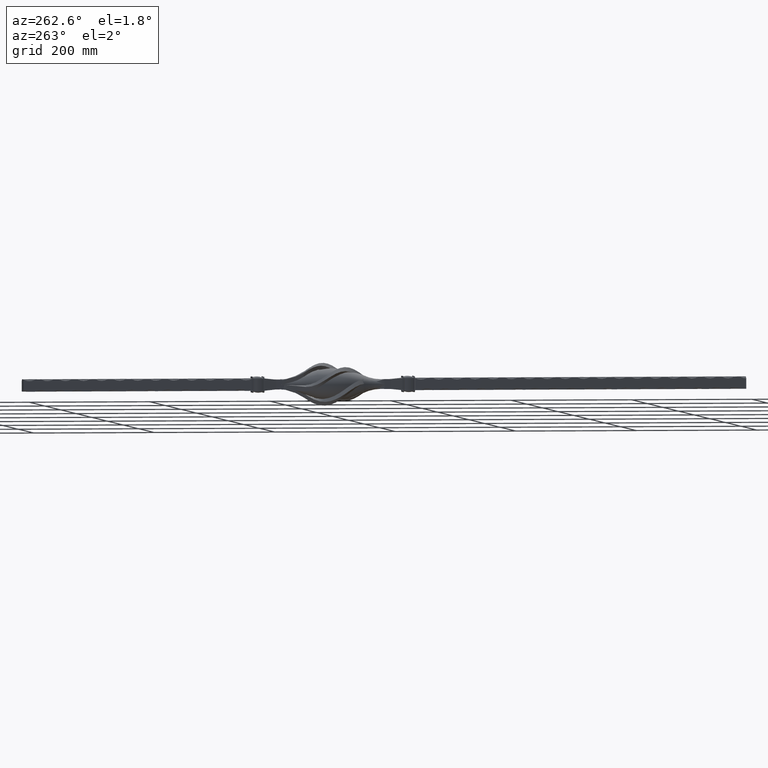
[diagram: clean part render]
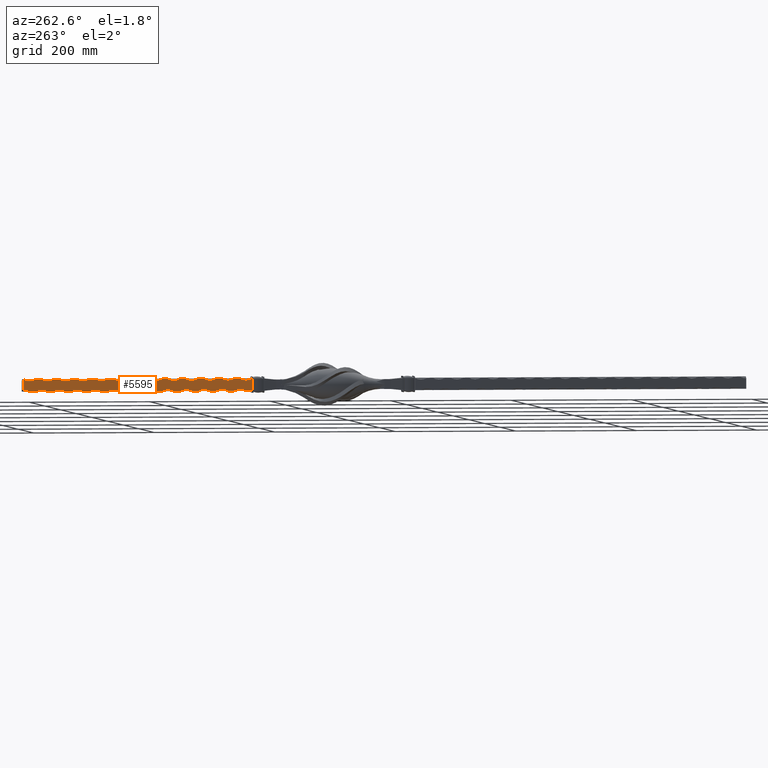
[diagram: same view with one face highlighted and labeled with its STEP entity id]
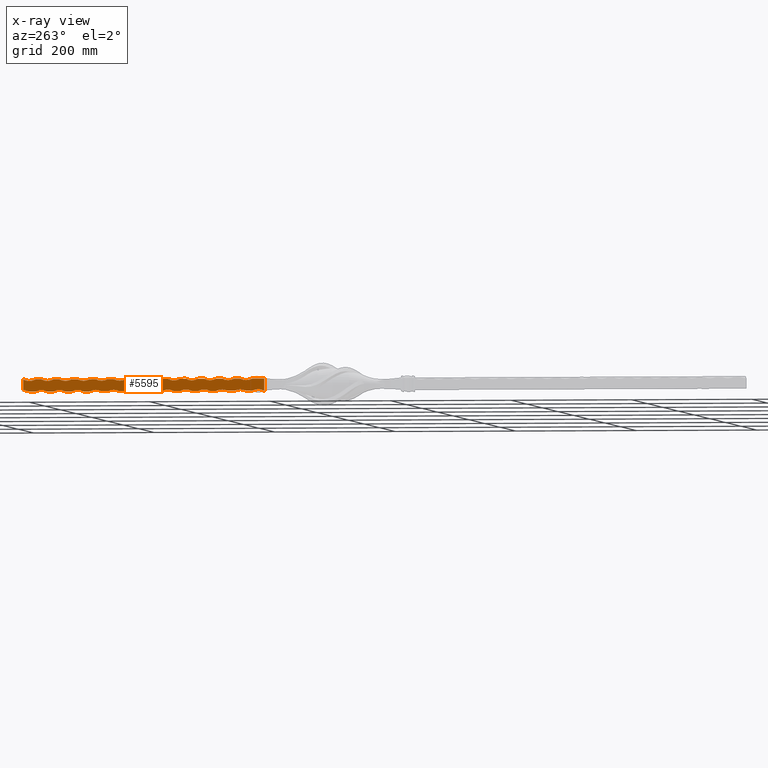
[diagram: x-ray of the same camera — body ghosted, the highlighted face saturated]
A machine part, auxiliary view. The second image highlights one B-rep face of the part: STEP entity #5595.
The next image is the same camera in x-ray: the body ghosted, the highlighted face saturated — about 0% of this face is hidden behind the body in this view.
In plain terms, the highlighted planar face has unit normal (1, 0, -0).
Its self-contained STEP definition (entity closure, byte-faithful):
#202 = ORIENTED_EDGE ( 'NONE', *, *, #7452, .T. ) ;
#312 = CARTESIAN_POINT ( 'NONE',  ( -10.00000000000000711, 265.0000000000036380, -9.999999999999994671 ) ) ;
#369 = VECTOR ( 'NONE', #27631, 1000.000000000000000 ) ;
#381 = CARTESIAN_POINT ( 'NONE',  ( -10.00000000000001243, 185.0000000000000568, -28.74999999999810640 ) ) ;
#448 = VERTEX_POINT ( 'NONE', #4737 ) ;
#671 = DIRECTION ( 'NONE',  ( 1.000000000000000000, -0.000000000000000000, -2.220446049250313081E-16 ) ) ;
#728 = CIRCLE ( 'NONE', #17836, 21.25000000000002842 ) ;
#756 = CIRCLE ( 'NONE', #24498, 21.25000000000003197 ) ;
#771 = CARTESIAN_POINT ( 'NONE',  ( -10.00000000000000000, 130.0000000000000000, 10.00000000000000533 ) ) ;
#831 = DIRECTION ( 'NONE',  ( 2.449021377849606245E-16, 0.000000000000000000, 1.000000000000000000 ) ) ;
#901 = LINE ( 'NONE', #10067, #8507 ) ;
#940 = ORIENTED_EDGE ( 'NONE', *, *, #14835, .T. ) ;
#1094 = ORIENTED_EDGE ( 'NONE', *, *, #19893, .F. ) ;
#1108 = EDGE_CURVE ( 'NONE', #24104, #27330, #24768, .T. ) ;
#1150 = CIRCLE ( 'NONE', #2302, 21.25000000000002842 ) ;
#1180 = VERTEX_POINT ( 'NONE', #9942 ) ;
#1182 = CARTESIAN_POINT ( 'NONE',  ( -10.00000000000000178, 130.0000000000000000, -9.999999999999994671 ) ) ;
#1254 = DIRECTION ( 'NONE',  ( 8.673617379884035472E-17, 0.000000000000000000, 1.000000000000000000 ) ) ;
#1308 = CIRCLE ( 'NONE', #23399, 21.25000000000003197 ) ;
#1478 = CARTESIAN_POINT ( 'NONE',  ( -10.00000000000000711, 135.0000000000036096, -9.999999999999994671 ) ) ;
#1511 = VERTEX_POINT ( 'NONE', #3891 ) ;
#1568 = VERTEX_POINT ( 'NONE', #8354 ) ;
#1618 = CARTESIAN_POINT ( 'NONE',  ( -10.00000000000001243, 485.0000000000000568, -28.74999999999810640 ) ) ;
#1648 = CARTESIAN_POINT ( 'NONE',  ( -10.00000000000029132, 195.0000000000000568, 10.00000000000000533 ) ) ;
#1717 = DIRECTION ( 'NONE',  ( -8.163404592832022872E-17, 0.000000000000000000, -1.000000000000000000 ) ) ;
#1751 = DIRECTION ( 'NONE',  ( 1.000000000000000000, 0.000000000000000000, -8.673617379884035472E-17 ) ) ;
#1847 = DIRECTION ( 'NONE',  ( -1.000000000000000000, -0.000000000000000000, 8.673617379884035472E-17 ) ) ;
#1853 = EDGE_CURVE ( 'NONE', #5916, #5891, #21262, .T. ) ;
#1884 = ORIENTED_EDGE ( 'NONE', *, *, #16923, .F. ) ;
#2122 = DIRECTION ( 'NONE',  ( 8.673617379884035472E-17, 0.000000000000000000, 1.000000000000000000 ) ) ;
#2302 = AXIS2_PLACEMENT_3D ( 'NONE', #24758, #6931, #26747 ) ;
#2370 = DIRECTION ( 'NONE',  ( -0.000000000000000000, -1.000000000000000000, -0.000000000000000000 ) ) ;
#2411 = DIRECTION ( 'NONE',  ( -1.000000000000000000, -0.000000000000000000, 8.673617379884035472E-17 ) ) ;
#2507 = CIRCLE ( 'NONE', #10330, 21.25000000000003197 ) ;
#2556 = DIRECTION ( 'NONE',  ( -8.163404592832022872E-17, 0.000000000000000000, -1.000000000000000000 ) ) ;
#2656 = CARTESIAN_POINT ( 'NONE',  ( -10.00000000000000711, 465.0000000000036948, -9.999999999999994671 ) ) ;
#2670 = CARTESIAN_POINT ( 'NONE',  ( -10.00000000000000178, 130.0000000000000000, -9.999999999999994671 ) ) ;
#2755 = DIRECTION ( 'NONE',  ( 1.000000000000000000, -0.000000000000000000, -2.220446049250313081E-16 ) ) ;
#2780 = ORIENTED_EDGE ( 'NONE', *, *, #24439, .T. ) ;
#2790 = DIRECTION ( 'NONE',  ( -0.000000000000000000, -1.000000000000000000, -0.000000000000000000 ) ) ;
#3011 = DIRECTION ( 'NONE',  ( 1.000000000000000000, -0.000000000000000000, -2.220446049250313081E-16 ) ) ;
#3129 = EDGE_CURVE ( 'NONE', #12239, #19579, #27453, .T. ) ;
#3242 = VECTOR ( 'NONE', #20435, 1000.000000000000000 ) ;
#3360 = VECTOR ( 'NONE', #1254, 1000.000000000000000 ) ;
#3513 = VERTEX_POINT ( 'NONE', #1478 ) ;
#3679 = CARTESIAN_POINT ( 'NONE',  ( -10.00000000000072653, 315.0000000000000568, 10.00000000000000533 ) ) ;
#3684 = CIRCLE ( 'NONE', #19750, 21.25000000000002842 ) ;
#3707 = VERTEX_POINT ( 'NONE', #4370 ) ;
#3723 = VERTEX_POINT ( 'NONE', #22062 ) ;
#3746 = VECTOR ( 'NONE', #25754, 1000.000000000000000 ) ;
#3782 = ORIENTED_EDGE ( 'NONE', *, *, #27594, .F. ) ;
#3891 = CARTESIAN_POINT ( 'NONE',  ( -10.00000000000000711, 445.0000000000036948, -9.999999999999992895 ) ) ;
#3923 = CARTESIAN_POINT ( 'NONE',  ( -10.00000000000000178, 130.0000000000000000, -9.999999999999994671 ) ) ;
#4029 = VERTEX_POINT ( 'NONE', #24724 ) ;
#4060 = LINE ( 'NONE', #10410, #6471 ) ;
#4252 = VECTOR ( 'NONE', #25484, 1000.000000000000000 ) ;
#4283 = EDGE_CURVE ( 'NONE', #21634, #4560, #7568, .T. ) ;
#4286 = CARTESIAN_POINT ( 'NONE',  ( -10.00000000000000711, 505.0000000000035811, -9.999999999999992895 ) ) ;
#4351 = ORIENTED_EDGE ( 'NONE', *, *, #28506, .T. ) ;
#4370 = CARTESIAN_POINT ( 'NONE',  ( -10.00000000000000711, 325.0000000000036948, -9.999999999999994671 ) ) ;
#4399 = CIRCLE ( 'NONE', #10290, 21.25000000000002842 ) ;
#4453 = CIRCLE ( 'NONE', #14155, 21.25000000000002842 ) ;
#4511 = VECTOR ( 'NONE', #16256, 1000.000000000000000 ) ;
#4560 = VERTEX_POINT ( 'NONE', #16438 ) ;
#4658 = LINE ( 'NONE', #27232, #13021 ) ;
#4715 = VECTOR ( 'NONE', #25766, 1000.000000000000000 ) ;
#4737 = CARTESIAN_POINT ( 'NONE',  ( -10.00000000000029132, 215.0000000000000853, 10.00000000000000533 ) ) ;
#4877 = CARTESIAN_POINT ( 'NONE',  ( -10.00000000000000000, 114.9999999999999858, 10.00000000000000533 ) ) ;
#5025 = AXIS2_PLACEMENT_3D ( 'NONE', #13639, #2411, #20337 ) ;
#5034 = CARTESIAN_POINT ( 'NONE',  ( -10.00000000000000000, 130.0000000000000000, 10.00000000000000533 ) ) ;
#5079 = VECTOR ( 'NONE', #13804, 1000.000000000000000 ) ;
#5092 = VECTOR ( 'NONE', #2122, 1000.000000000000000 ) ;
#5362 = AXIS2_PLACEMENT_3D ( 'NONE', #7268, #671, #15871 ) ;
#5425 = LINE ( 'NONE', #21426, #26608 ) ;
#5433 = DIRECTION ( 'NONE',  ( 2.449021377849606245E-16, 0.000000000000000000, 1.000000000000000000 ) ) ;
#5586 = EDGE_CURVE ( 'NONE', #8330, #3707, #28031, .T. ) ;
#5595 = ADVANCED_FACE ( 'NONE', ( #20759 ), #8532, .F. ) ;
#5643 = ORIENTED_EDGE ( 'NONE', *, *, #19721, .T. ) ;
#5734 = EDGE_CURVE ( 'NONE', #27488, #23081, #27919, .T. ) ;
#5764 = DIRECTION ( 'NONE',  ( -8.163404592832022872E-17, 0.000000000000000000, -1.000000000000000000 ) ) ;
#5817 = VERTEX_POINT ( 'NONE', #3679 ) ;
#5891 = VERTEX_POINT ( 'NONE', #17339 ) ;
#5916 = VERTEX_POINT ( 'NONE', #6309 ) ;
#5943 = VERTEX_POINT ( 'NONE', #10624 ) ;
#5991 = VECTOR ( 'NONE', #8640, 1000.000000000000000 ) ;
#6163 = DIRECTION ( 'NONE',  ( 1.000000000000000000, -0.000000000000000000, -2.220446049250313081E-16 ) ) ;
#6217 = LINE ( 'NONE', #23109, #4511 ) ;
#6309 = CARTESIAN_POINT ( 'NONE',  ( -10.00000000000105516, 405.0000000000000000, 10.00000000000000533 ) ) ;
#6320 = CARTESIAN_POINT ( 'NONE',  ( -10.00000000000000711, 415.0000000000036380, -9.999999999999992895 ) ) ;
#6471 = VECTOR ( 'NONE', #14896, 1000.000000000000000 ) ;
#6594 = CARTESIAN_POINT ( 'NONE',  ( -10.00000000000000711, 475.0000000000036380, -9.999999999999992895 ) ) ;
#6627 = CARTESIAN_POINT ( 'NONE',  ( -10.00000000000050804, 275.0000000000000000, 10.00000000000000533 ) ) ;
#6725 = DIRECTION ( 'NONE',  ( -8.163404592832022872E-17, 0.000000000000000000, -1.000000000000000000 ) ) ;
#6742 = EDGE_CURVE ( 'NONE', #3513, #21263, #1308, .T. ) ;
#6776 = CARTESIAN_POINT ( 'NONE',  ( -10.00000000000116351, 435.0000000000000568, 10.00000000000000533 ) ) ;
#6931 = DIRECTION ( 'NONE',  ( -1.000000000000000000, -0.000000000000000000, 8.673617379884035472E-17 ) ) ;
#6963 = VERTEX_POINT ( 'NONE', #14752 ) ;
#7055 = CARTESIAN_POINT ( 'NONE',  ( -10.00000000000018296, 185.0000000000000568, 10.00000000000000533 ) ) ;
#7061 = CARTESIAN_POINT ( 'NONE',  ( -10.00000000000127365, 465.0000000000000000, 10.00000000000000533 ) ) ;
#7073 = DIRECTION ( 'NONE',  ( 2.449021377849606245E-16, 0.000000000000000000, 1.000000000000000000 ) ) ;
#7080 = DIRECTION ( 'NONE',  ( -8.163404592832022872E-17, 0.000000000000000000, -1.000000000000000000 ) ) ;
#7114 = CARTESIAN_POINT ( 'NONE',  ( -10.00000000000000711, 255.0000000000036664, -9.999999999999994671 ) ) ;
#7157 = VERTEX_POINT ( 'NONE', #4286 ) ;
#7230 = CARTESIAN_POINT ( 'NONE',  ( -10.00000000000001243, 215.0000000000000853, -28.74999999999810640 ) ) ;
#7268 = CARTESIAN_POINT ( 'NONE',  ( -10.00000000000001243, 395.0000000000000000, -28.74999999999810640 ) ) ;
#7452 = EDGE_CURVE ( 'NONE', #14329, #3513, #12071, .T. ) ;
#7470 = VERTEX_POINT ( 'NONE', #6627 ) ;
#7568 = LINE ( 'NONE', #18706, #3746 ) ;
#7633 = DIRECTION ( 'NONE',  ( -0.000000000000000000, -1.000000000000000000, -0.000000000000000000 ) ) ;
#7672 = CARTESIAN_POINT ( 'NONE',  ( -10.00000000000000178, 114.9999999999999858, -9.999999999999994671 ) ) ;
#7722 = EDGE_CURVE ( 'NONE', #15475, #18776, #27653, .T. ) ;
#7810 = DIRECTION ( 'NONE',  ( 2.449021377849606245E-16, 0.000000000000000000, 1.000000000000000000 ) ) ;
#7871 = LINE ( 'NONE', #17274, #13104 ) ;
#7876 = VERTEX_POINT ( 'NONE', #18555 ) ;
#7890 = DIRECTION ( 'NONE',  ( -1.000000000000000000, -0.000000000000000000, 8.673617379884035472E-17 ) ) ;
#7908 = DIRECTION ( 'NONE',  ( 1.000000000000000000, -0.000000000000000000, -2.220446049250313081E-16 ) ) ;
#7917 = CARTESIAN_POINT ( 'NONE',  ( -10.00000000000000711, 355.0000000000036380, -9.999999999999994671 ) ) ;
#7955 = VECTOR ( 'NONE', #19290, 1000.000000000000000 ) ;
#7977 = DIRECTION ( 'NONE',  ( -0.000000000000000000, -1.000000000000000000, -0.000000000000000000 ) ) ;
#7997 = VERTEX_POINT ( 'NONE', #7917 ) ;
#8003 = CARTESIAN_POINT ( 'NONE',  ( -10.00000000000001243, 125.0000000000000000, -28.74999999999810640 ) ) ;
#8037 = CIRCLE ( 'NONE', #21735, 21.25000000000003197 ) ;
#8271 = CIRCLE ( 'NONE', #11599, 21.25000000000002842 ) ;
#8298 = CARTESIAN_POINT ( 'NONE',  ( -10.00000000000000000, 130.0000000000000000, 10.00000000000000533 ) ) ;
#8330 = VERTEX_POINT ( 'NONE', #27988 ) ;
#8354 = CARTESIAN_POINT ( 'NONE',  ( -10.00000000000007283, 155.0000000000000284, 10.00000000000000533 ) ) ;
#8398 = EDGE_LOOP ( 'NONE', ( #20141, #5643, #21670, #2780, #202, #18965, #25384, #23688, #20042, #15542, #1094, #25281, #24770, #24324, #20905, #23514, #1884, #26960, #16407, #16335, #15158, #28310, #14721, #17008, #3782, #28305, #22552, #17260, #27761, #9898, #21021, #19700, #15772, #19708, #4351, #10571, #25763, #18618, #27301, #20825, #23243, #22976, #18746, #10246, #20032, #940, #18910, #18596, #19663, #16508, #13169, #15819, #10795, #23675, #9909 ) ) ;
#8428 = CARTESIAN_POINT ( 'NONE',  ( -10.00000000000000711, 385.0000000000036380, -9.999999999999992895 ) ) ;
#8438 = EDGE_CURVE ( 'NONE', #15497, #10127, #19297, .T. ) ;
#8507 = VECTOR ( 'NONE', #7633, 1000.000000000000000 ) ;
#8532 = PLANE ( 'NONE',  #15125 ) ;
#8640 = DIRECTION ( 'NONE',  ( -0.000000000000000000, -1.000000000000000000, -0.000000000000000000 ) ) ;
#8847 = VERTEX_POINT ( 'NONE', #27958 ) ;
#8872 = DIRECTION ( 'NONE',  ( -8.163404592832022872E-17, 0.000000000000000000, -1.000000000000000000 ) ) ;
#8878 = LINE ( 'NONE', #7672, #3360 ) ;
#9210 = DIRECTION ( 'NONE',  ( 2.449021377849606245E-16, 0.000000000000000000, 1.000000000000000000 ) ) ;
#9318 = DIRECTION ( 'NONE',  ( -1.000000000000000000, -0.000000000000000000, 8.673617379884035472E-17 ) ) ;
#9415 = EDGE_CURVE ( 'NONE', #26517, #15497, #14419, .T. ) ;
#9496 = EDGE_CURVE ( 'NONE', #16437, #14079, #14746, .T. ) ;
#9508 = CARTESIAN_POINT ( 'NONE',  ( -10.00000000000138023, 505.0000000000000000, 28.75000000000003197 ) ) ;
#9601 = CARTESIAN_POINT ( 'NONE',  ( -10.00000000000127187, 475.0000000000000568, 28.75000000000003197 ) ) ;
#9750 = CARTESIAN_POINT ( 'NONE',  ( -10.00000000000000178, 130.0000000000000000, -9.999999999999994671 ) ) ;
#9898 = ORIENTED_EDGE ( 'NONE', *, *, #12027, .F. ) ;
#9909 = ORIENTED_EDGE ( 'NONE', *, *, #23589, .T. ) ;
#9942 = CARTESIAN_POINT ( 'NONE',  ( -10.00000000000000000, 515.0000000000000000, 10.00000000000000533 ) ) ;
#10067 = CARTESIAN_POINT ( 'NONE',  ( -10.00000000000000178, 130.0000000000000000, -9.999999999999994671 ) ) ;
#10127 = VERTEX_POINT ( 'NONE', #14318 ) ;
#10246 = ORIENTED_EDGE ( 'NONE', *, *, #19341, .T. ) ;
#10290 = AXIS2_PLACEMENT_3D ( 'NONE', #11892, #25485, #18703 ) ;
#10293 = CARTESIAN_POINT ( 'NONE',  ( -10.00000000000000000, 130.0000000000000000, 10.00000000000000533 ) ) ;
#10330 = AXIS2_PLACEMENT_3D ( 'NONE', #22479, #26829, #15815 ) ;
#10338 = CARTESIAN_POINT ( 'NONE',  ( -10.00000000000000711, 495.0000000000036380, -9.999999999999994671 ) ) ;
#10410 = CARTESIAN_POINT ( 'NONE',  ( -10.00000000000000000, 130.0000000000000000, 10.00000000000000533 ) ) ;
#10517 = CARTESIAN_POINT ( 'NONE',  ( -10.00000000000072653, 335.0000000000000568, 10.00000000000000533 ) ) ;
#10549 = AXIS2_PLACEMENT_3D ( 'NONE', #27768, #3011, #5433 ) ;
#10571 = ORIENTED_EDGE ( 'NONE', *, *, #28131, .T. ) ;
#10624 = CARTESIAN_POINT ( 'NONE',  ( -10.00000000000000711, 195.0000000000036664, -9.999999999999994671 ) ) ;
#10717 = CARTESIAN_POINT ( 'NONE',  ( -10.00000000000000178, 130.0000000000000000, -9.999999999999994671 ) ) ;
#10795 = ORIENTED_EDGE ( 'NONE', *, *, #10910, .T. ) ;
#10810 = CIRCLE ( 'NONE', #19498, 21.25000000000003197 ) ;
#10910 = EDGE_CURVE ( 'NONE', #16479, #12239, #10810, .T. ) ;
#10973 = AXIS2_PLACEMENT_3D ( 'NONE', #26942, #24751, #6725 ) ;
#11144 = CARTESIAN_POINT ( 'NONE',  ( -10.00000000000000711, 235.0000000000036380, -9.999999999999994671 ) ) ;
#11408 = CARTESIAN_POINT ( 'NONE',  ( -10.00000000000050626, 265.0000000000000000, 28.75000000000003197 ) ) ;
#11599 = AXIS2_PLACEMENT_3D ( 'NONE', #11408, #17896, #7080 ) ;
#11640 = CIRCLE ( 'NONE', #21323, 21.25000000000003197 ) ;
#11730 = AXIS2_PLACEMENT_3D ( 'NONE', #15436, #6163, #28437 ) ;
#11779 = DIRECTION ( 'NONE',  ( -1.000000000000000000, -0.000000000000000000, 8.673617379884035472E-17 ) ) ;
#11791 = EDGE_CURVE ( 'NONE', #1180, #13733, #16395, .T. ) ;
#11843 = AXIS2_PLACEMENT_3D ( 'NONE', #13467, #15904, #2556 ) ;
#11871 = DIRECTION ( 'NONE',  ( -1.000000000000000000, -0.000000000000000000, 8.673617379884035472E-17 ) ) ;
#11892 = CARTESIAN_POINT ( 'NONE',  ( -10.00000000000039968, 235.0000000000000284, 28.75000000000003197 ) ) ;
#11913 = CIRCLE ( 'NONE', #10549, 21.25000000000003197 ) ;
#12027 = EDGE_CURVE ( 'NONE', #27847, #26517, #13568, .T. ) ;
#12071 = LINE ( 'NONE', #26551, #5079 ) ;
#12111 = CARTESIAN_POINT ( 'NONE',  ( -10.00000000000000178, 130.0000000000000000, -9.999999999999994671 ) ) ;
#12142 = VECTOR ( 'NONE', #27531, 1000.000000000000000 ) ;
#12201 = CIRCLE ( 'NONE', #11730, 21.25000000000003197 ) ;
#12217 = DIRECTION ( 'NONE',  ( 2.449021377849606245E-16, 0.000000000000000000, 1.000000000000000000 ) ) ;
#12239 = VERTEX_POINT ( 'NONE', #11144 ) ;
#12260 = EDGE_CURVE ( 'NONE', #18660, #18061, #28822, .T. ) ;
#12274 = EDGE_CURVE ( 'NONE', #448, #15475, #17043, .T. ) ;
#12287 = CARTESIAN_POINT ( 'NONE',  ( -10.00000000000050804, 255.0000000000000000, 10.00000000000000533 ) ) ;
#12318 = DIRECTION ( 'NONE',  ( -0.000000000000000000, -1.000000000000000000, -0.000000000000000000 ) ) ;
#12388 = CIRCLE ( 'NONE', #25026, 21.25000000000002842 ) ;
#12429 = CARTESIAN_POINT ( 'NONE',  ( -10.00000000000127365, 485.0000000000000568, 10.00000000000000533 ) ) ;
#12466 = DIRECTION ( 'NONE',  ( 2.449021377849606245E-16, 0.000000000000000000, 1.000000000000000000 ) ) ;
#12469 = EDGE_CURVE ( 'NONE', #1511, #16158, #13191, .T. ) ;
#12664 = CARTESIAN_POINT ( 'NONE',  ( -10.00000000000000000, 130.0000000000000000, 10.00000000000000533 ) ) ;
#12934 = CIRCLE ( 'NONE', #17073, 21.25000000000003197 ) ;
#12977 = VERTEX_POINT ( 'NONE', #27360 ) ;
#13021 = VECTOR ( 'NONE', #20663, 1000.000000000000000 ) ;
#13104 = VECTOR ( 'NONE', #14961, 1000.000000000000000 ) ;
#13154 = VERTEX_POINT ( 'NONE', #12429 ) ;
#13157 = CARTESIAN_POINT ( 'NONE',  ( -10.00000000000000178, 130.0000000000000000, -9.999999999999994671 ) ) ;
#13169 = ORIENTED_EDGE ( 'NONE', *, *, #22940, .T. ) ;
#13191 = LINE ( 'NONE', #10717, #7955 ) ;
#13396 = DIRECTION ( 'NONE',  ( -1.000000000000000000, -0.000000000000000000, 8.673617379884035472E-17 ) ) ;
#13467 = CARTESIAN_POINT ( 'NONE',  ( -10.00000000000072475, 325.0000000000000568, 28.75000000000003197 ) ) ;
#13568 = LINE ( 'NONE', #8298, #24322 ) ;
#13639 = CARTESIAN_POINT ( 'NONE',  ( -10.00000000000105338, 415.0000000000000568, 28.75000000000003197 ) ) ;
#13653 = AXIS2_PLACEMENT_3D ( 'NONE', #13725, #13915, #24973 ) ;
#13687 = AXIS2_PLACEMENT_3D ( 'NONE', #381, #22538, #9210 ) ;
#13725 = CARTESIAN_POINT ( 'NONE',  ( -10.00000000000001243, 335.0000000000000568, -28.74999999999810640 ) ) ;
#13733 = VERTEX_POINT ( 'NONE', #14258 ) ;
#13804 = DIRECTION ( 'NONE',  ( -0.000000000000000000, -1.000000000000000000, -0.000000000000000000 ) ) ;
#13915 = DIRECTION ( 'NONE',  ( 1.000000000000000000, -0.000000000000000000, -2.220446049250313081E-16 ) ) ;
#14079 = VERTEX_POINT ( 'NONE', #15870 ) ;
#14155 = AXIS2_PLACEMENT_3D ( 'NONE', #9601, #11871, #16351 ) ;
#14258 = CARTESIAN_POINT ( 'NONE',  ( -10.00000000000138201, 495.0000000000000000, 10.00000000000000533 ) ) ;
#14317 = DIRECTION ( 'NONE',  ( 1.000000000000000000, -0.000000000000000000, -2.220446049250313081E-16 ) ) ;
#14318 = CARTESIAN_POINT ( 'NONE',  ( -10.00000000000105516, 425.0000000000000568, 10.00000000000000533 ) ) ;
#14329 = VERTEX_POINT ( 'NONE', #16638 ) ;
#14419 = CIRCLE ( 'NONE', #19666, 21.25000000000002842 ) ;
#14496 = VECTOR ( 'NONE', #16535, 1000.000000000000000 ) ;
#14695 = CARTESIAN_POINT ( 'NONE',  ( -10.00000000000000000, 130.0000000000000000, 10.00000000000000533 ) ) ;
#14721 = ORIENTED_EDGE ( 'NONE', *, *, #23429, .F. ) ;
#14746 = LINE ( 'NONE', #15493, #5991 ) ;
#14752 = CARTESIAN_POINT ( 'NONE',  ( -10.00000000000061817, 305.0000000000000568, 10.00000000000000533 ) ) ;
#14835 = EDGE_CURVE ( 'NONE', #7997, #8330, #901, .T. ) ;
#14896 = DIRECTION ( 'NONE',  ( -0.000000000000000000, -1.000000000000000000, -0.000000000000000000 ) ) ;
#14910 = CARTESIAN_POINT ( 'NONE',  ( -10.00000000000000711, 225.0000000000036948, -9.999999999999994671 ) ) ;
#14961 = DIRECTION ( 'NONE',  ( -0.000000000000000000, -1.000000000000000000, -0.000000000000000000 ) ) ;
#15018 = DIRECTION ( 'NONE',  ( -8.673617379884035472E-17, 0.000000000000000000, -1.000000000000000000 ) ) ;
#15029 = LINE ( 'NONE', #14695, #27162 ) ;
#15081 = DIRECTION ( 'NONE',  ( -1.000000000000000000, -0.000000000000000000, 8.673617379884035472E-17 ) ) ;
#15109 = DIRECTION ( 'NONE',  ( -8.163404592832021640E-17, 0.000000000000000000, -1.000000000000000000 ) ) ;
#15125 = AXIS2_PLACEMENT_3D ( 'NONE', #13157, #19759, #15018 ) ;
#15158 = ORIENTED_EDGE ( 'NONE', *, *, #22336, .F. ) ;
#15256 = EDGE_CURVE ( 'NONE', #6963, #22314, #20018, .T. ) ;
#15328 = CIRCLE ( 'NONE', #5362, 21.25000000000003197 ) ;
#15436 = CARTESIAN_POINT ( 'NONE',  ( -10.00000000000001243, 155.0000000000000284, -28.74999999999810640 ) ) ;
#15475 = VERTEX_POINT ( 'NONE', #1648 ) ;
#15476 = CARTESIAN_POINT ( 'NONE',  ( -10.00000000000000178, 515.0000000000000000, -9.999999999999994671 ) ) ;
#15493 = CARTESIAN_POINT ( 'NONE',  ( -10.00000000000000000, 130.0000000000000000, 10.00000000000000533 ) ) ;
#15497 = VERTEX_POINT ( 'NONE', #6776 ) ;
#15542 = ORIENTED_EDGE ( 'NONE', *, *, #28428, .F. ) ;
#15672 = AXIS2_PLACEMENT_3D ( 'NONE', #20957, #7890, #5764 ) ;
#15715 = VERTEX_POINT ( 'NONE', #4877 ) ;
#15751 = VERTEX_POINT ( 'NONE', #22934 ) ;
#15772 = ORIENTED_EDGE ( 'NONE', *, *, #11791, .F. ) ;
#15774 = CARTESIAN_POINT ( 'NONE',  ( -10.00000000000000000, 130.0000000000000000, 10.00000000000000533 ) ) ;
#15800 = LINE ( 'NONE', #15774, #3242 ) ;
#15815 = DIRECTION ( 'NONE',  ( 2.449021377849606245E-16, 0.000000000000000000, 1.000000000000000000 ) ) ;
#15819 = ORIENTED_EDGE ( 'NONE', *, *, #21037, .T. ) ;
#15870 = CARTESIAN_POINT ( 'NONE',  ( -10.00000000000083666, 365.0000000000000568, 10.00000000000000533 ) ) ;
#15871 = DIRECTION ( 'NONE',  ( 2.449021377849606245E-16, 0.000000000000000000, 1.000000000000000000 ) ) ;
#15904 = DIRECTION ( 'NONE',  ( -1.000000000000000000, -0.000000000000000000, 8.673617379884035472E-17 ) ) ;
#16158 = VERTEX_POINT ( 'NONE', #27752 ) ;
#16159 = CARTESIAN_POINT ( 'NONE',  ( -10.00000000000000178, 130.0000000000000000, -9.999999999999994671 ) ) ;
#16200 = VECTOR ( 'NONE', #28217, 1000.000000000000000 ) ;
#16253 = EDGE_CURVE ( 'NONE', #12977, #22692, #22762, .T. ) ;
#16256 = DIRECTION ( 'NONE',  ( -0.000000000000000000, -1.000000000000000000, -0.000000000000000000 ) ) ;
#16296 = DIRECTION ( 'NONE',  ( -0.000000000000000000, -1.000000000000000000, -0.000000000000000000 ) ) ;
#16335 = ORIENTED_EDGE ( 'NONE', *, *, #17722, .F. ) ;
#16351 = DIRECTION ( 'NONE',  ( -8.163404592832022872E-17, 0.000000000000000000, -1.000000000000000000 ) ) ;
#16352 = CARTESIAN_POINT ( 'NONE',  ( -10.00000000000040146, 245.0000000000000568, 10.00000000000000533 ) ) ;
#16395 = CIRCLE ( 'NONE', #21715, 21.25000000000002842 ) ;
#16407 = ORIENTED_EDGE ( 'NONE', *, *, #15256, .F. ) ;
#16437 = VERTEX_POINT ( 'NONE', #26935 ) ;
#16438 = CARTESIAN_POINT ( 'NONE',  ( -10.00000000000000711, 405.0000000000036380, -9.999999999999994671 ) ) ;
#16463 = VERTEX_POINT ( 'NONE', #2656 ) ;
#16479 = VERTEX_POINT ( 'NONE', #7114 ) ;
#16508 = ORIENTED_EDGE ( 'NONE', *, *, #12260, .T. ) ;
#16517 = EDGE_CURVE ( 'NONE', #15751, #5943, #24639, .T. ) ;
#16535 = DIRECTION ( 'NONE',  ( -0.000000000000000000, -1.000000000000000000, -0.000000000000000000 ) ) ;
#16579 = LINE ( 'NONE', #1182, #4715 ) ;
#16594 = CARTESIAN_POINT ( 'NONE',  ( -10.00000000000001243, 245.0000000000000568, -28.74999999999810640 ) ) ;
#16638 = CARTESIAN_POINT ( 'NONE',  ( -10.00000000000000711, 145.0000000000036380, -9.999999999999994671 ) ) ;
#16698 = VERTEX_POINT ( 'NONE', #8428 ) ;
#16923 = EDGE_CURVE ( 'NONE', #7470, #27488, #8271, .T. ) ;
#16997 = AXIS2_PLACEMENT_3D ( 'NONE', #18837, #1751, #15109 ) ;
#17008 = ORIENTED_EDGE ( 'NONE', *, *, #9496, .F. ) ;
#17043 = CIRCLE ( 'NONE', #10973, 21.25000000000002842 ) ;
#17073 = AXIS2_PLACEMENT_3D ( 'NONE', #27584, #14317, #27391 ) ;
#17191 = VECTOR ( 'NONE', #16296, 1000.000000000000000 ) ;
#17201 = DIRECTION ( 'NONE',  ( 1.000000000000000000, -0.000000000000000000, -2.220446049250313081E-16 ) ) ;
#17256 = CIRCLE ( 'NONE', #16997, 21.25000000000003197 ) ;
#17260 = ORIENTED_EDGE ( 'NONE', *, *, #8438, .F. ) ;
#17274 = CARTESIAN_POINT ( 'NONE',  ( -10.00000000000000178, 130.0000000000000000, -9.999999999999994671 ) ) ;
#17339 = CARTESIAN_POINT ( 'NONE',  ( -10.00000000000094502, 395.0000000000000000, 10.00000000000000533 ) ) ;
#17341 = CARTESIAN_POINT ( 'NONE',  ( -10.00000000000116174, 445.0000000000000568, 28.75000000000003197 ) ) ;
#17379 = EDGE_CURVE ( 'NONE', #21263, #15715, #8878, .T. ) ;
#17463 = DIRECTION ( 'NONE',  ( -0.000000000000000000, -1.000000000000000000, -0.000000000000000000 ) ) ;
#17470 = EDGE_CURVE ( 'NONE', #18207, #23810, #21129, .T. ) ;
#17722 = EDGE_CURVE ( 'NONE', #5817, #6963, #26613, .T. ) ;
#17829 = CARTESIAN_POINT ( 'NONE',  ( -10.00000000000000711, 375.0000000000036380, -9.999999999999994671 ) ) ;
#17836 = AXIS2_PLACEMENT_3D ( 'NONE', #22507, #13396, #8872 ) ;
#17896 = DIRECTION ( 'NONE',  ( -1.000000000000000000, -0.000000000000000000, 8.673617379884035472E-17 ) ) ;
#17948 = CIRCLE ( 'NONE', #13687, 21.25000000000003197 ) ;
#18061 = VERTEX_POINT ( 'NONE', #24937 ) ;
#18207 = VERTEX_POINT ( 'NONE', #10338 ) ;
#18427 = EDGE_CURVE ( 'NONE', #23081, #7876, #4399, .T. ) ;
#18555 = CARTESIAN_POINT ( 'NONE',  ( -10.00000000000040146, 225.0000000000000284, 10.00000000000000533 ) ) ;
#18596 = ORIENTED_EDGE ( 'NONE', *, *, #19466, .T. ) ;
#18618 = ORIENTED_EDGE ( 'NONE', *, *, #28249, .T. ) ;
#18660 = VERTEX_POINT ( 'NONE', #28725 ) ;
#18703 = DIRECTION ( 'NONE',  ( -8.163404592832022872E-17, 0.000000000000000000, -1.000000000000000000 ) ) ;
#18706 = CARTESIAN_POINT ( 'NONE',  ( -10.00000000000000178, 130.0000000000000000, -9.999999999999994671 ) ) ;
#18746 = ORIENTED_EDGE ( 'NONE', *, *, #24143, .T. ) ;
#18776 = VERTEX_POINT ( 'NONE', #7055 ) ;
#18783 = DIRECTION ( 'NONE',  ( -8.163404592832022872E-17, 0.000000000000000000, -1.000000000000000000 ) ) ;
#18837 = CARTESIAN_POINT ( 'NONE',  ( -10.00000000000000888, 515.0000000000000000, -28.74999999999810996 ) ) ;
#18910 = ORIENTED_EDGE ( 'NONE', *, *, #5586, .T. ) ;
#18965 = ORIENTED_EDGE ( 'NONE', *, *, #6742, .T. ) ;
#19290 = DIRECTION ( 'NONE',  ( -0.000000000000000000, -1.000000000000000000, -0.000000000000000000 ) ) ;
#19297 = LINE ( 'NONE', #12664, #21047 ) ;
#19341 = EDGE_CURVE ( 'NONE', #16698, #20915, #23083, .T. ) ;
#19466 = EDGE_CURVE ( 'NONE', #3707, #25946, #16579, .T. ) ;
#19481 = DIRECTION ( 'NONE',  ( -8.163404592832022872E-17, 0.000000000000000000, -1.000000000000000000 ) ) ;
#19498 = AXIS2_PLACEMENT_3D ( 'NONE', #16594, #25124, #12217 ) ;
#19579 = VERTEX_POINT ( 'NONE', #14910 ) ;
#19663 = ORIENTED_EDGE ( 'NONE', *, *, #22313, .T. ) ;
#19666 = AXIS2_PLACEMENT_3D ( 'NONE', #17341, #1847, #19481 ) ;
#19700 = ORIENTED_EDGE ( 'NONE', *, *, #19986, .F. ) ;
#19708 = ORIENTED_EDGE ( 'NONE', *, *, #27361, .F. ) ;
#19721 = EDGE_CURVE ( 'NONE', #5943, #24104, #17948, .T. ) ;
#19750 = AXIS2_PLACEMENT_3D ( 'NONE', #26123, #15081, #1717 ) ;
#19759 = DIRECTION ( 'NONE',  ( 1.000000000000000000, 0.000000000000000000, -8.673617379884035472E-17 ) ) ;
#19893 = EDGE_CURVE ( 'NONE', #18776, #4029, #12388, .T. ) ;
#19986 = EDGE_CURVE ( 'NONE', #13733, #13154, #6217, .T. ) ;
#20018 = CIRCLE ( 'NONE', #15672, 21.25000000000002842 ) ;
#20032 = ORIENTED_EDGE ( 'NONE', *, *, #23030, .T. ) ;
#20042 = ORIENTED_EDGE ( 'NONE', *, *, #21873, .F. ) ;
#20141 = ORIENTED_EDGE ( 'NONE', *, *, #16517, .T. ) ;
#20179 = VECTOR ( 'NONE', #17463, 1000.000000000000000 ) ;
#20321 = CARTESIAN_POINT ( 'NONE',  ( -10.00000000000116351, 455.0000000000000568, 10.00000000000000533 ) ) ;
#20337 = DIRECTION ( 'NONE',  ( -8.163404592832022872E-17, 0.000000000000000000, -1.000000000000000000 ) ) ;
#20435 = DIRECTION ( 'NONE',  ( -0.000000000000000000, -1.000000000000000000, -0.000000000000000000 ) ) ;
#20558 = CARTESIAN_POINT ( 'NONE',  ( -10.00000000000061817, 285.0000000000000568, 10.00000000000000533 ) ) ;
#20663 = DIRECTION ( 'NONE',  ( -0.000000000000000000, -1.000000000000000000, -0.000000000000000000 ) ) ;
#20751 = CARTESIAN_POINT ( 'NONE',  ( -10.00000000000001243, 425.0000000000000568, -28.74999999999810640 ) ) ;
#20759 = FACE_OUTER_BOUND ( 'NONE', #8398, .T. ) ;
#20758 = VECTOR ( 'NONE', #2790, 1000.000000000000000 ) ;
#20825 = ORIENTED_EDGE ( 'NONE', *, *, #12469, .T. ) ;
#20905 = ORIENTED_EDGE ( 'NONE', *, *, #18427, .F. ) ;
#20915 = VERTEX_POINT ( 'NONE', #17829 ) ;
#20957 = CARTESIAN_POINT ( 'NONE',  ( -10.00000000000061640, 295.0000000000000568, 28.75000000000003197 ) ) ;
#20983 = CIRCLE ( 'NONE', #11843, 21.25000000000002842 ) ;
#20997 = EDGE_CURVE ( 'NONE', #16158, #21634, #11640, .T. ) ;
#21021 = ORIENTED_EDGE ( 'NONE', *, *, #25482, .F. ) ;
#21037 = EDGE_CURVE ( 'NONE', #23865, #16479, #4658, .T. ) ;
#21047 = VECTOR ( 'NONE', #7977, 1000.000000000000000 ) ;
#21129 = CIRCLE ( 'NONE', #26999, 21.25000000000003197 ) ;
#21262 = LINE ( 'NONE', #10293, #25756 ) ;
#21263 = VERTEX_POINT ( 'NONE', #22050 ) ;
#21323 = AXIS2_PLACEMENT_3D ( 'NONE', #20751, #2755, #27322 ) ;
#21426 = CARTESIAN_POINT ( 'NONE',  ( -10.00000000000000000, 130.0000000000000000, 10.00000000000000533 ) ) ;
#21475 = EDGE_CURVE ( 'NONE', #8847, #15715, #15800, .T. ) ;
#21634 = VERTEX_POINT ( 'NONE', #6320 ) ;
#21670 = ORIENTED_EDGE ( 'NONE', *, *, #1108, .T. ) ;
#21715 = AXIS2_PLACEMENT_3D ( 'NONE', #9508, #9318, #22628 ) ;
#21735 = AXIS2_PLACEMENT_3D ( 'NONE', #7230, #25141, #831 ) ;
#21759 = CARTESIAN_POINT ( 'NONE',  ( -10.00000000000000711, 175.0000000000036664, -9.999999999999994671 ) ) ;
#21873 = EDGE_CURVE ( 'NONE', #1568, #8847, #1150, .T. ) ;
#22050 = CARTESIAN_POINT ( 'NONE',  ( -10.00000000000000178, 114.9999999999999858, -9.999999999999994671 ) ) ;
#22062 = CARTESIAN_POINT ( 'NONE',  ( -10.00000000000000711, 515.0000000000000000, -7.499999999998074429 ) ) ;
#22252 = CARTESIAN_POINT ( 'NONE',  ( -10.00000000000000711, 165.0000000000036380, -9.999999999999994671 ) ) ;
#22313 = EDGE_CURVE ( 'NONE', #25946, #18660, #2507, .T. ) ;
#22314 = VERTEX_POINT ( 'NONE', #20558 ) ;
#22336 = EDGE_CURVE ( 'NONE', #22692, #5817, #20983, .T. ) ;
#22479 = CARTESIAN_POINT ( 'NONE',  ( -10.00000000000001243, 305.0000000000000568, -28.74999999999810640 ) ) ;
#22507 = CARTESIAN_POINT ( 'NONE',  ( -10.00000000000083489, 355.0000000000000568, 28.75000000000003197 ) ) ;
#22538 = DIRECTION ( 'NONE',  ( 1.000000000000000000, -0.000000000000000000, -2.220446049250313081E-16 ) ) ;
#22552 = ORIENTED_EDGE ( 'NONE', *, *, #25275, .F. ) ;
#22628 = DIRECTION ( 'NONE',  ( -8.163404592832022872E-17, 0.000000000000000000, -1.000000000000000000 ) ) ;
#22671 = CARTESIAN_POINT ( 'NONE',  ( -10.00000000000000178, 130.0000000000000000, -9.999999999999994671 ) ) ;
#22692 = VERTEX_POINT ( 'NONE', #10517 ) ;
#22762 = LINE ( 'NONE', #23182, #16200 ) ;
#22812 = CARTESIAN_POINT ( 'NONE',  ( -10.00000000000018119, 175.0000000000000568, 28.75000000000003197 ) ) ;
#22897 = CIRCLE ( 'NONE', #5025, 21.25000000000002842 ) ;
#22931 = VECTOR ( 'NONE', #2370, 1000.000000000000000 ) ;
#22934 = CARTESIAN_POINT ( 'NONE',  ( -10.00000000000000711, 205.0000000000036664, -9.999999999999994671 ) ) ;
#22940 = EDGE_CURVE ( 'NONE', #18061, #23865, #756, .T. ) ;
#22976 = ORIENTED_EDGE ( 'NONE', *, *, #4283, .T. ) ;
#22977 = EDGE_CURVE ( 'NONE', #16463, #1511, #12934, .T. ) ;
#23030 = EDGE_CURVE ( 'NONE', #20915, #7997, #11913, .T. ) ;
#23081 = VERTEX_POINT ( 'NONE', #16352 ) ;
#23083 = LINE ( 'NONE', #22671, #17191 ) ;
#23109 = CARTESIAN_POINT ( 'NONE',  ( -10.00000000000000000, 130.0000000000000000, 10.00000000000000533 ) ) ;
#23182 = CARTESIAN_POINT ( 'NONE',  ( -10.00000000000000000, 130.0000000000000000, 10.00000000000000533 ) ) ;
#23186 = EDGE_CURVE ( 'NONE', #7876, #448, #15029, .T. ) ;
#23243 = ORIENTED_EDGE ( 'NONE', *, *, #20997, .T. ) ;
#23399 = AXIS2_PLACEMENT_3D ( 'NONE', #8003, #7908, #7810 ) ;
#23429 = EDGE_CURVE ( 'NONE', #14079, #12977, #728, .T. ) ;
#23514 = ORIENTED_EDGE ( 'NONE', *, *, #5734, .F. ) ;
#23589 = EDGE_CURVE ( 'NONE', #19579, #15751, #8037, .T. ) ;
#23675 = ORIENTED_EDGE ( 'NONE', *, *, #3129, .T. ) ;
#23677 = DIRECTION ( 'NONE',  ( -0.000000000000000000, -1.000000000000000000, -0.000000000000000000 ) ) ;
#23688 = ORIENTED_EDGE ( 'NONE', *, *, #21475, .F. ) ;
#23810 = VERTEX_POINT ( 'NONE', #6594 ) ;
#23865 = VERTEX_POINT ( 'NONE', #312 ) ;
#24104 = VERTEX_POINT ( 'NONE', #21759 ) ;
#24143 = EDGE_CURVE ( 'NONE', #4560, #16698, #15328, .T. ) ;
#24200 = LINE ( 'NONE', #15476, #5092 ) ;
#24322 = VECTOR ( 'NONE', #23677, 1000.000000000000000 ) ;
#24324 = ORIENTED_EDGE ( 'NONE', *, *, #23186, .F. ) ;
#24439 = EDGE_CURVE ( 'NONE', #27330, #14329, #12201, .T. ) ;
#24498 = AXIS2_PLACEMENT_3D ( 'NONE', #27291, #24697, #7073 ) ;
#24639 = LINE ( 'NONE', #9750, #12142 ) ;
#24697 = DIRECTION ( 'NONE',  ( 1.000000000000000000, -0.000000000000000000, -2.220446049250313081E-16 ) ) ;
#24724 = CARTESIAN_POINT ( 'NONE',  ( -10.00000000000018296, 165.0000000000000284, 10.00000000000000533 ) ) ;
#24751 = DIRECTION ( 'NONE',  ( -1.000000000000000000, -0.000000000000000000, 8.673617379884035472E-17 ) ) ;
#24758 = CARTESIAN_POINT ( 'NONE',  ( -10.00000000000007105, 145.0000000000000284, 28.75000000000003197 ) ) ;
#24768 = LINE ( 'NONE', #12111, #369 ) ;
#24770 = ORIENTED_EDGE ( 'NONE', *, *, #12274, .F. ) ;
#24925 = LINE ( 'NONE', #16159, #14496 ) ;
#24937 = CARTESIAN_POINT ( 'NONE',  ( -10.00000000000000711, 285.0000000000036380, -9.999999999999994671 ) ) ;
#24973 = DIRECTION ( 'NONE',  ( 2.449021377849606245E-16, 0.000000000000000000, 1.000000000000000000 ) ) ;
#25026 = AXIS2_PLACEMENT_3D ( 'NONE', #22812, #11779, #18783 ) ;
#25124 = DIRECTION ( 'NONE',  ( 1.000000000000000000, -0.000000000000000000, -2.220446049250313081E-16 ) ) ;
#25141 = DIRECTION ( 'NONE',  ( 1.000000000000000000, -0.000000000000000000, -2.220446049250313081E-16 ) ) ;
#25275 = EDGE_CURVE ( 'NONE', #10127, #5916, #22897, .T. ) ;
#25281 = ORIENTED_EDGE ( 'NONE', *, *, #7722, .F. ) ;
#25384 = ORIENTED_EDGE ( 'NONE', *, *, #17379, .T. ) ;
#25482 = EDGE_CURVE ( 'NONE', #13154, #27847, #4453, .T. ) ;
#25484 = DIRECTION ( 'NONE',  ( -0.000000000000000000, -1.000000000000000000, -0.000000000000000000 ) ) ;
#25485 = DIRECTION ( 'NONE',  ( -1.000000000000000000, -0.000000000000000000, 8.673617379884035472E-17 ) ) ;
#25737 = DIRECTION ( 'NONE',  ( -0.000000000000000000, -1.000000000000000000, -0.000000000000000000 ) ) ;
#25754 = DIRECTION ( 'NONE',  ( -0.000000000000000000, -1.000000000000000000, -0.000000000000000000 ) ) ;
#25756 = VECTOR ( 'NONE', #25925, 1000.000000000000000 ) ;
#25763 = ORIENTED_EDGE ( 'NONE', *, *, #17470, .T. ) ;
#25766 = DIRECTION ( 'NONE',  ( -0.000000000000000000, -1.000000000000000000, -0.000000000000000000 ) ) ;
#25925 = DIRECTION ( 'NONE',  ( -0.000000000000000000, -1.000000000000000000, -0.000000000000000000 ) ) ;
#25946 = VERTEX_POINT ( 'NONE', #28758 ) ;
#26123 = CARTESIAN_POINT ( 'NONE',  ( -10.00000000000094325, 385.0000000000000000, 28.75000000000003197 ) ) ;
#26321 = EDGE_CURVE ( 'NONE', #22314, #7470, #4060, .T. ) ;
#26517 = VERTEX_POINT ( 'NONE', #20321 ) ;
#26551 = CARTESIAN_POINT ( 'NONE',  ( -10.00000000000000178, 130.0000000000000000, -9.999999999999994671 ) ) ;
#26608 = VECTOR ( 'NONE', #12318, 1000.000000000000000 ) ;
#26613 = LINE ( 'NONE', #5034, #20758 ) ;
#26747 = DIRECTION ( 'NONE',  ( -8.163404592832022872E-17, 0.000000000000000000, -1.000000000000000000 ) ) ;
#26829 = DIRECTION ( 'NONE',  ( 1.000000000000000000, -0.000000000000000000, -2.220446049250313081E-16 ) ) ;
#26935 = CARTESIAN_POINT ( 'NONE',  ( -10.00000000000094502, 375.0000000000000000, 10.00000000000000533 ) ) ;
#26942 = CARTESIAN_POINT ( 'NONE',  ( -10.00000000000028955, 205.0000000000000568, 28.75000000000003197 ) ) ;
#26960 = ORIENTED_EDGE ( 'NONE', *, *, #26321, .F. ) ;
#26999 = AXIS2_PLACEMENT_3D ( 'NONE', #1618, #17201, #12466 ) ;
#27162 = VECTOR ( 'NONE', #25737, 1000.000000000000000 ) ;
#27232 = CARTESIAN_POINT ( 'NONE',  ( -10.00000000000000178, 130.0000000000000000, -9.999999999999994671 ) ) ;
#27291 = CARTESIAN_POINT ( 'NONE',  ( -10.00000000000001243, 275.0000000000000000, -28.74999999999810640 ) ) ;
#27301 = ORIENTED_EDGE ( 'NONE', *, *, #22977, .T. ) ;
#27312 = VECTOR ( 'NONE', #27591, 1000.000000000000000 ) ;
#27322 = DIRECTION ( 'NONE',  ( 2.449021377849606245E-16, 0.000000000000000000, 1.000000000000000000 ) ) ;
#27330 = VERTEX_POINT ( 'NONE', #22252 ) ;
#27360 = CARTESIAN_POINT ( 'NONE',  ( -10.00000000000083666, 345.0000000000000568, 10.00000000000000533 ) ) ;
#27361 = EDGE_CURVE ( 'NONE', #3723, #1180, #24200, .T. ) ;
#27391 = DIRECTION ( 'NONE',  ( 2.449021377849606245E-16, 0.000000000000000000, 1.000000000000000000 ) ) ;
#27453 = LINE ( 'NONE', #3923, #20179 ) ;
#27488 = VERTEX_POINT ( 'NONE', #12287 ) ;
#27531 = DIRECTION ( 'NONE',  ( -0.000000000000000000, -1.000000000000000000, -0.000000000000000000 ) ) ;
#27584 = CARTESIAN_POINT ( 'NONE',  ( -10.00000000000001243, 455.0000000000000568, -28.74999999999810640 ) ) ;
#27591 = DIRECTION ( 'NONE',  ( -0.000000000000000000, -1.000000000000000000, -0.000000000000000000 ) ) ;
#27594 = EDGE_CURVE ( 'NONE', #5891, #16437, #3684, .T. ) ;
#27631 = DIRECTION ( 'NONE',  ( -0.000000000000000000, -1.000000000000000000, -0.000000000000000000 ) ) ;
#27653 = LINE ( 'NONE', #771, #27312 ) ;
#27752 = CARTESIAN_POINT ( 'NONE',  ( -10.00000000000000711, 435.0000000000036380, -9.999999999999994671 ) ) ;
#27761 = ORIENTED_EDGE ( 'NONE', *, *, #9415, .F. ) ;
#27768 = CARTESIAN_POINT ( 'NONE',  ( -10.00000000000001243, 365.0000000000000568, -28.74999999999810640 ) ) ;
#27847 = VERTEX_POINT ( 'NONE', #7061 ) ;
#27885 = CARTESIAN_POINT ( 'NONE',  ( -10.00000000000000000, 130.0000000000000000, 10.00000000000000533 ) ) ;
#27919 = LINE ( 'NONE', #27885, #4252 ) ;
#27958 = CARTESIAN_POINT ( 'NONE',  ( -10.00000000000007283, 135.0000000000000000, 10.00000000000000533 ) ) ;
#27988 = CARTESIAN_POINT ( 'NONE',  ( -10.00000000000000711, 345.0000000000036948, -9.999999999999994671 ) ) ;
#28031 = CIRCLE ( 'NONE', #13653, 21.25000000000003197 ) ;
#28131 = EDGE_CURVE ( 'NONE', #7157, #18207, #24925, .T. ) ;
#28217 = DIRECTION ( 'NONE',  ( -0.000000000000000000, -1.000000000000000000, -0.000000000000000000 ) ) ;
#28249 = EDGE_CURVE ( 'NONE', #23810, #16463, #7871, .T. ) ;
#28305 = ORIENTED_EDGE ( 'NONE', *, *, #1853, .F. ) ;
#28310 = ORIENTED_EDGE ( 'NONE', *, *, #16253, .F. ) ;
#28428 = EDGE_CURVE ( 'NONE', #4029, #1568, #5425, .T. ) ;
#28437 = DIRECTION ( 'NONE',  ( 2.449021377849606245E-16, 0.000000000000000000, 1.000000000000000000 ) ) ;
#28506 = EDGE_CURVE ( 'NONE', #3723, #7157, #17256, .T. ) ;
#28725 = CARTESIAN_POINT ( 'NONE',  ( -10.00000000000000711, 295.0000000000036380, -9.999999999999994671 ) ) ;
#28758 = CARTESIAN_POINT ( 'NONE',  ( -10.00000000000000711, 315.0000000000036380, -9.999999999999994671 ) ) ;
#28822 = LINE ( 'NONE', #2670, #22931 ) ;